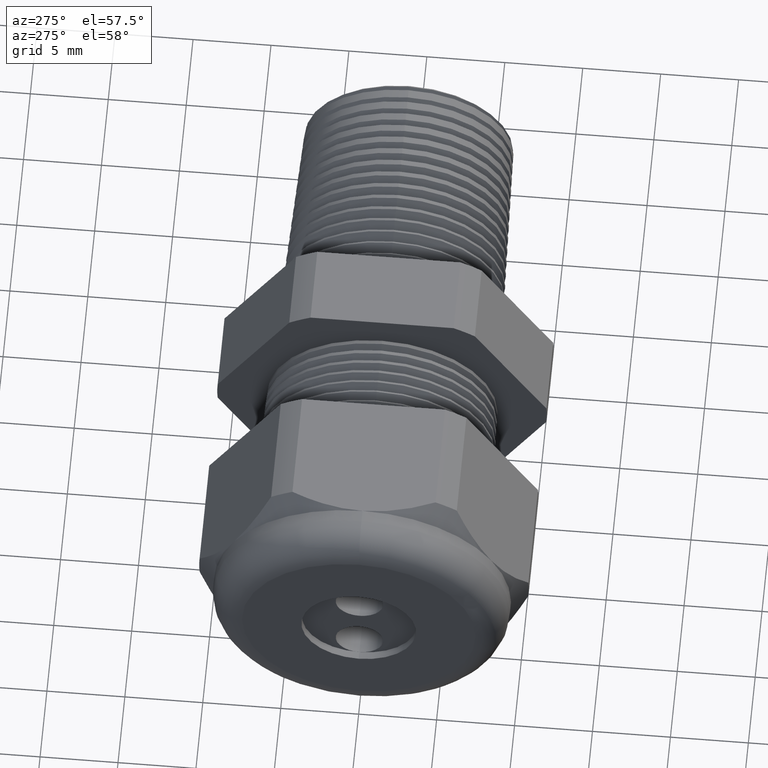
[diagram: clean part render]
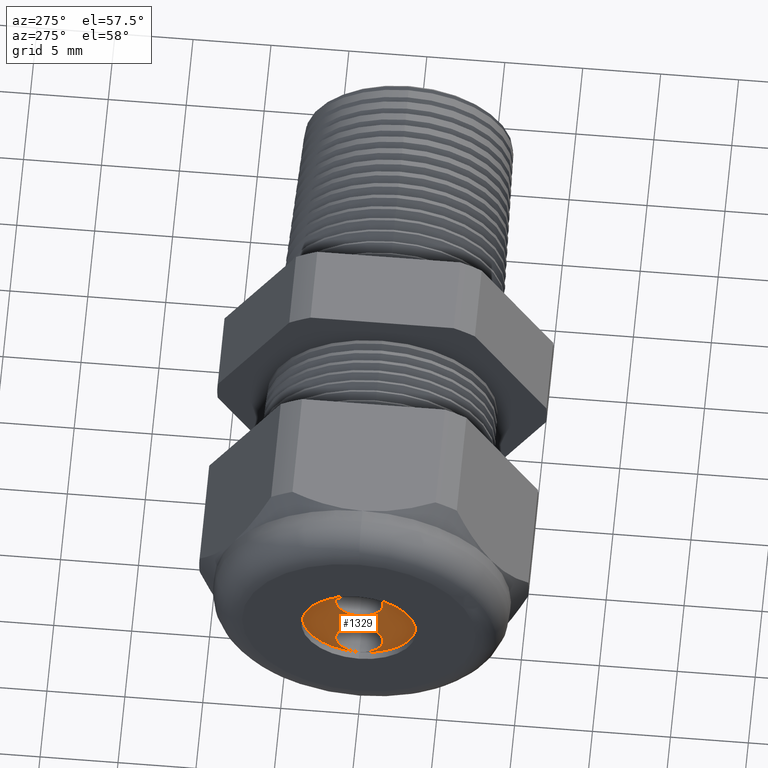
[diagram: same view with one face highlighted and labeled with its STEP entity id]
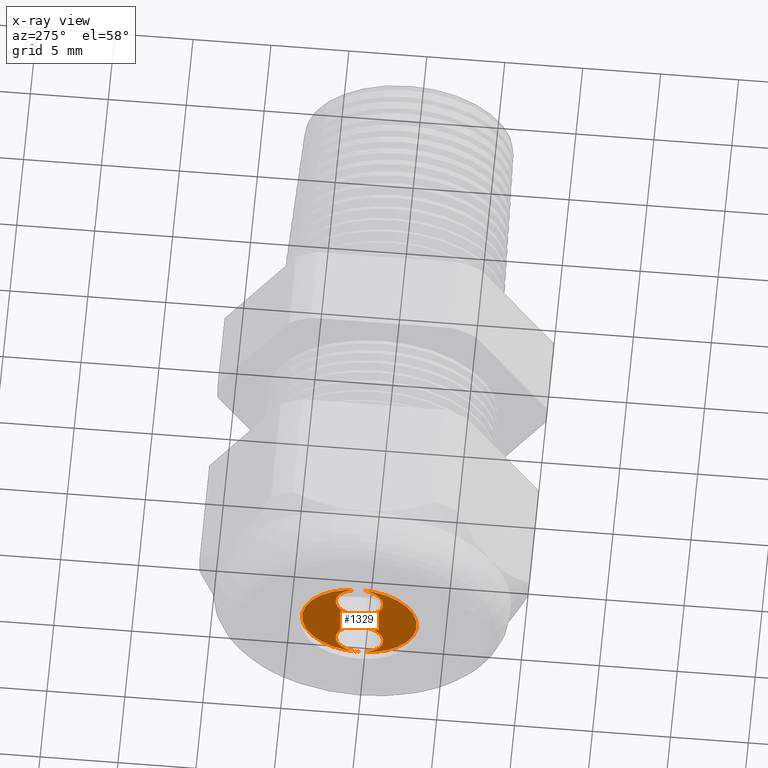
[diagram: x-ray of the same camera — body ghosted, the highlighted face saturated]
A machine part, auxiliary view. The second image highlights one B-rep face of the part: STEP entity #1329.
The next image is the same camera in x-ray: the body ghosted, the highlighted face saturated — about 0% of this face is hidden behind the body in this view.
In plain terms, the highlighted planar face has unit normal (-1, 0, 0).
Its self-contained STEP definition (entity closure, byte-faithful):
#1246 = EDGE_CURVE ( 'NONE', #1247, #1248, #3985, .T. ) ;
#1247 = VERTEX_POINT ( 'NONE', #3981 ) ;
#1248 = VERTEX_POINT ( 'NONE', #3980 ) ;
#1300 = VERTEX_POINT ( 'NONE', #4072 ) ;
#1301 = EDGE_CURVE ( 'NONE', #1300, #1302, #4071, .T. ) ;
#1302 = VERTEX_POINT ( 'NONE', #4129 ) ;
#1311 = VERTEX_POINT ( 'NONE', #4112 ) ;
#1316 = EDGE_CURVE ( 'NONE', #1311, #1317, #4105, .T. ) ;
#1317 = VERTEX_POINT ( 'NONE', #4100 ) ;
#1329 = ADVANCED_FACE ( 'NONE', ( #4143, #4142, #4141 ), #4140, .T. ) ;
#1330 = EDGE_LOOP ( 'NONE', ( #1331, #1397 ) ) ;
#1331 = ORIENTED_EDGE ( 'NONE', *, *, #1396, .F. ) ;
#1332 = ORIENTED_EDGE ( 'NONE', *, *, #1246, .T. ) ;
#1336 = EDGE_CURVE ( 'NONE', #1317, #1311, #4197, .T. ) ;
#1337 = ORIENTED_EDGE ( 'NONE', *, *, #1316, .F. ) ;
#1338 = EDGE_LOOP ( 'NONE', ( #1339, #1332 ) ) ;
#1339 = ORIENTED_EDGE ( 'NONE', *, *, #1354, .T. ) ;
#1354 = EDGE_CURVE ( 'NONE', #1248, #1247, #4174, .T. ) ;
#1396 = EDGE_CURVE ( 'NONE', #1302, #1300, #4247, .T. ) ;
#1397 = ORIENTED_EDGE ( 'NONE', *, *, #1301, .F. ) ;
#1398 = EDGE_LOOP ( 'NONE', ( #1399, #1337 ) ) ;
#1399 = ORIENTED_EDGE ( 'NONE', *, *, #1336, .F. ) ;
#3980 = CARTESIAN_POINT ( 'NONE',  ( -1.159999999999999900, 0.0000000000000000000, 0.1449999999999999900 ) ) ;
#3981 = CARTESIAN_POINT ( 'NONE',  ( -1.159999999999999900, 1.775737858763661900E-017, -0.1449999999999999900 ) ) ;
#3982 = DIRECTION ( 'NONE',  ( 0.0000000000000000000, 0.0000000000000000000, 1.000000000000000000 ) ) ;
#3983 = DIRECTION ( 'NONE',  ( -1.000000000000000000, 0.0000000000000000000, 0.0000000000000000000 ) ) ;
#3984 = AXIS2_PLACEMENT_3D ( 'NONE', #3990, #3983, #3982 ) ;
#3985 = CIRCLE ( 'NONE', #3984, 0.1449999999999999900 ) ;
#3990 = CARTESIAN_POINT ( 'NONE',  ( -1.159999999999999900, 0.0000000000000000000, 0.0000000000000000000 ) ) ;
#4068 = DIRECTION ( 'NONE',  ( -1.000000000000000000, 0.0000000000000000000, 0.0000000000000000000 ) ) ;
#4069 = CARTESIAN_POINT ( 'NONE',  ( -1.159999999999999900, 5.918762593752623400E-016, 0.08475999999999998800 ) ) ;
#4070 = AXIS2_PLACEMENT_3D ( 'NONE', #4069, #4068, #4130 ) ;
#4071 = CIRCLE ( 'NONE', #4070, 0.05999999999999999800 ) ;
#4072 = CARTESIAN_POINT ( 'NONE',  ( -1.159999999999999900, 5.992241401701464000E-016, 0.02475999999999999400 ) ) ;
#4100 = CARTESIAN_POINT ( 'NONE',  ( -1.159999999999999900, 0.0000000000000000000, -0.02475999999999999400 ) ) ;
#4101 = DIRECTION ( 'NONE',  ( 0.0000000000000000000, 0.0000000000000000000, 1.000000000000000000 ) ) ;
#4102 = DIRECTION ( 'NONE',  ( -1.000000000000000000, 0.0000000000000000000, 0.0000000000000000000 ) ) ;
#4103 = CARTESIAN_POINT ( 'NONE',  ( -1.159999999999999900, 0.0000000000000000000, -0.08475999999999998800 ) ) ;
#4104 = AXIS2_PLACEMENT_3D ( 'NONE', #4103, #4102, #4101 ) ;
#4105 = CIRCLE ( 'NONE', #4104, 0.05999999999999999800 ) ;
#4112 = CARTESIAN_POINT ( 'NONE',  ( -1.159999999999999900, 7.347880794884118400E-018, -0.1447600000000000000 ) ) ;
#4129 = CARTESIAN_POINT ( 'NONE',  ( -1.159999999999999900, 5.918762593752623400E-016, 0.1447600000000000000 ) ) ;
#4130 = DIRECTION ( 'NONE',  ( 0.0000000000000000000, -6.982966722218764900E-015, -1.000000000000000000 ) ) ;
#4133 = CARTESIAN_POINT ( 'NONE',  ( -1.159999999999999900, 0.0000000000000000000, -0.08475999999999998800 ) ) ;
#4136 = DIRECTION ( 'NONE',  ( 0.0000000000000000000, 0.0000000000000000000, 1.000000000000000000 ) ) ;
#4137 = DIRECTION ( 'NONE',  ( -1.000000000000000000, 0.0000000000000000000, 0.0000000000000000000 ) ) ;
#4138 = CARTESIAN_POINT ( 'NONE',  ( -1.159999999999999900, 0.0000000000000000000, 0.0000000000000000000 ) ) ;
#4139 = AXIS2_PLACEMENT_3D ( 'NONE', #4138, #4137, #4136 ) ;
#4140 = PLANE ( 'NONE',  #4139 ) ;
#4141 = FACE_OUTER_BOUND ( 'NONE', #1338, .T. ) ;
#4142 = FACE_BOUND ( 'NONE', #1398, .T. ) ;
#4143 = FACE_BOUND ( 'NONE', #1330, .T. ) ;
#4170 = DIRECTION ( 'NONE',  ( 0.0000000000000000000, 0.0000000000000000000, 1.000000000000000000 ) ) ;
#4171 = DIRECTION ( 'NONE',  ( -1.000000000000000000, 0.0000000000000000000, 0.0000000000000000000 ) ) ;
#4172 = CARTESIAN_POINT ( 'NONE',  ( -1.159999999999999900, 0.0000000000000000000, 0.0000000000000000000 ) ) ;
#4173 = AXIS2_PLACEMENT_3D ( 'NONE', #4172, #4171, #4170 ) ;
#4174 = CIRCLE ( 'NONE', #4173, 0.1449999999999999900 ) ;
#4194 = DIRECTION ( 'NONE',  ( 0.0000000000000000000, 0.0000000000000000000, 1.000000000000000000 ) ) ;
#4195 = DIRECTION ( 'NONE',  ( -1.000000000000000000, 0.0000000000000000000, 0.0000000000000000000 ) ) ;
#4196 = AXIS2_PLACEMENT_3D ( 'NONE', #4133, #4195, #4194 ) ;
#4197 = CIRCLE ( 'NONE', #4196, 0.05999999999999999800 ) ;
#4243 = DIRECTION ( 'NONE',  ( 0.0000000000000000000, -6.982966722218764900E-015, -1.000000000000000000 ) ) ;
#4244 = DIRECTION ( 'NONE',  ( -1.000000000000000000, 0.0000000000000000000, 0.0000000000000000000 ) ) ;
#4245 = CARTESIAN_POINT ( 'NONE',  ( -1.159999999999999900, 5.918762593752623400E-016, 0.08475999999999998800 ) ) ;
#4246 = AXIS2_PLACEMENT_3D ( 'NONE', #4245, #4244, #4243 ) ;
#4247 = CIRCLE ( 'NONE', #4246, 0.05999999999999999800 ) ;